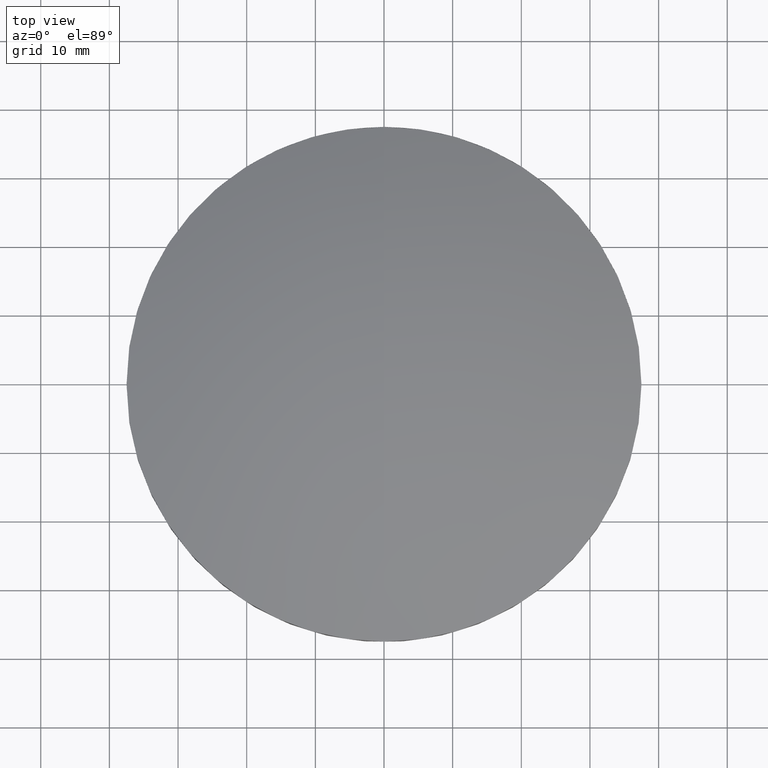
[diagram: clean part render]
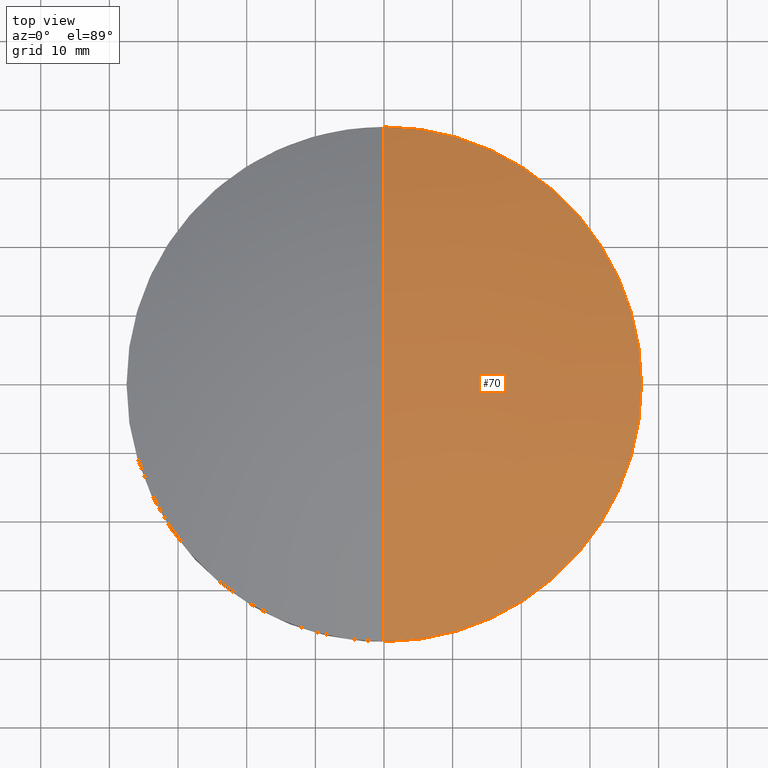
[diagram: same view with one face highlighted and labeled with its STEP entity id]
A machine part, top view. The second image highlights one B-rep face of the part: STEP entity #70.
In plain terms, the highlighted spherical surface has radius 103.01 mm.
Its self-contained STEP definition (entity closure, byte-faithful):
#11 = DIRECTION ( 'NONE',  ( 0.0000000000000000000, 1.000000000000000000, 0.0000000000000000000 ) ) ;
#12 = DIRECTION ( 'NONE',  ( -1.000000000000000000, 0.0000000000000000000, 0.0000000000000000000 ) ) ;
#18 = AXIS2_PLACEMENT_3D ( 'NONE', #20, #12, #11 ) ;
#19 = SPHERICAL_SURFACE ( 'NONE', #18, 103.0099999999999900 ) ;
#20 = CARTESIAN_POINT ( 'NONE',  ( 0.0000000000000000000, 0.0000000000000000000, -97.97999999999999000 ) ) ;
#23 = FACE_OUTER_BOUND ( 'NONE', #50, .T. ) ;
#28 = DIRECTION ( 'NONE',  ( 0.0000000000000000000, 0.0000000000000000000, -1.000000000000000000 ) ) ;
#29 = DIRECTION ( 'NONE',  ( 1.000000000000000000, 0.0000000000000000000, 0.0000000000000000000 ) ) ;
#30 = CARTESIAN_POINT ( 'NONE',  ( 0.0000000000000000000, 0.0000000000000000000, -97.97999999999999000 ) ) ;
#31 = AXIS2_PLACEMENT_3D ( 'NONE', #30, #29, #28 ) ;
#32 = CIRCLE ( 'NONE', #31, 103.0099999999999900 ) ;
#38 = DIRECTION ( 'NONE',  ( 1.000000000000000000, 0.0000000000000000000, 0.0000000000000000000 ) ) ;
#39 = DIRECTION ( 'NONE',  ( -0.0000000000000000000, -0.0000000000000000000, 1.000000000000000000 ) ) ;
#40 = CARTESIAN_POINT ( 'NONE',  ( 0.0000000000000000000, 0.0000000000000000000, -2.038298430765758300 ) ) ;
#41 = AXIS2_PLACEMENT_3D ( 'NONE', #40, #39, #38 ) ;
#42 = CIRCLE ( 'NONE', #41, 37.50000000000000000 ) ;
#48 = VERTEX_POINT ( 'NONE', #61 ) ;
#50 = EDGE_LOOP ( 'NONE', ( #71, #72, #69, #67 ) ) ;
#51 = VERTEX_POINT ( 'NONE', #53 ) ;
#52 = CARTESIAN_POINT ( 'NONE',  ( 37.50000000000000000, 0.0000000000000000000, -2.038298430765758300 ) ) ;
#53 = CARTESIAN_POINT ( 'NONE',  ( 0.0000000000000000000, 6.307335025362153200E-015, 5.030000000000006500 ) ) ;
#61 = CARTESIAN_POINT ( 'NONE',  ( 0.0000000000000000000, 37.49999999999997900, -2.038298430765768100 ) ) ;
#63 = VERTEX_POINT ( 'NONE', #52 ) ;
#66 = EDGE_CURVE ( 'NONE', #111, #63, #42, .T. ) ;
#67 = ORIENTED_EDGE ( 'NONE', *, *, #73, .T. ) ;
#69 = ORIENTED_EDGE ( 'NONE', *, *, #113, .T. ) ;
#70 = ADVANCED_FACE ( 'NONE', ( #23 ), #19, .T. ) ;
#71 = ORIENTED_EDGE ( 'NONE', *, *, #84, .F. ) ;
#72 = ORIENTED_EDGE ( 'NONE', *, *, #66, .T. ) ;
#73 = EDGE_CURVE ( 'NONE', #48, #51, #32, .T. ) ;
#84 = EDGE_CURVE ( 'NONE', #111, #51, #140, .T. ) ;
#111 = VERTEX_POINT ( 'NONE', #218 ) ;
#113 = EDGE_CURVE ( 'NONE', #63, #48, #217, .T. ) ;
#136 = DIRECTION ( 'NONE',  ( -1.224606353822377300E-016, -1.000000000000000000, 0.0000000000000000000 ) ) ;
#137 = DIRECTION ( 'NONE',  ( -1.000000000000000000, 1.224606353822377300E-016, 0.0000000000000000000 ) ) ;
#138 = CARTESIAN_POINT ( 'NONE',  ( 0.0000000000000000000, 0.0000000000000000000, -97.97999999999999000 ) ) ;
#139 = AXIS2_PLACEMENT_3D ( 'NONE', #138, #137, #136 ) ;
#140 = CIRCLE ( 'NONE', #139, 103.0099999999999900 ) ;
#213 = DIRECTION ( 'NONE',  ( 1.000000000000000000, 0.0000000000000000000, 0.0000000000000000000 ) ) ;
#214 = DIRECTION ( 'NONE',  ( -0.0000000000000000000, -0.0000000000000000000, 1.000000000000000000 ) ) ;
#215 = CARTESIAN_POINT ( 'NONE',  ( 0.0000000000000000000, 0.0000000000000000000, -2.038298430765758300 ) ) ;
#216 = AXIS2_PLACEMENT_3D ( 'NONE', #215, #214, #213 ) ;
#217 = CIRCLE ( 'NONE', #216, 37.50000000000000000 ) ;
#218 = CARTESIAN_POINT ( 'NONE',  ( -4.592273826833911600E-015, -37.49999999999997900, -2.038298430765768100 ) ) ;